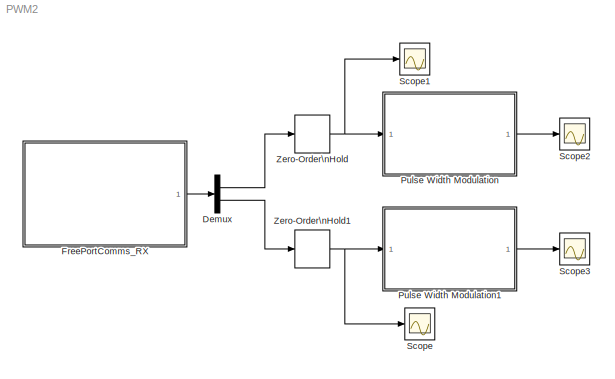
MODEL PWM2
KIND model
BLOCK [Demux] Demux
  Outputs = 2
  Ports = [1, 2]
  SID = 1
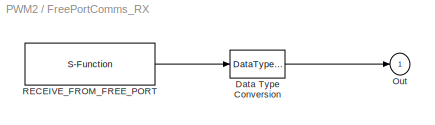
BLOCK [SubSystem] FreePortComms_RX
  Ports = [0, 1]
  RequestExecContextInheritance = off
  SID = 11
  ShowPortLabels = none
  Tag = mcTarget_freePortCommsRX
BLOCK [DataTypeConversion] FreePortComms_RX/Data Type Conversion
  OutDataTypeStr = double
  SID = 11:12
BLOCK [Outport] FreePortComms_RX/Out
  IconDisplay = Port number
  SID = 11:14
BLOCK [S-Function] FreePortComms_RX/RECEIVE_FROM_FREE_PORT
  EnableBusSupport = off
  FunctionName = freePortComms_rxd
  Parameters = sampletime, channel, buf_size, data_type, port, baudrate, format
  Ports = [0, 1]
  SFcnIsStateOwnerBlock = off
  SFunctionDeploymentMode = off
  SID = 11:13
  Tag = mcTarget_freePortCommsRX
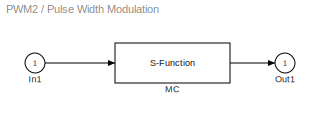
BLOCK [SubSystem] Pulse Width Modulation
  Ports = [1, 1]
  RequestExecContextInheritance = off
  SID = 15
  Tag = mcTarget_pwm
BLOCK [Inport] Pulse Width Modulation/In1
  IconDisplay = Port number
  SID = 15:16
BLOCK [S-Function] Pulse Width Modulation/MC
  EnableBusSupport = off
  FunctionName = pwm_sfcn_9S12
  Parameters = sampletime, PWMperiod, pulse_pin, sign_port, sign_pin, Vmax, sig_mon
  Ports = [1, 1]
  SFcnIsStateOwnerBlock = off
  SFunctionDeploymentMode = off
  SID = 15:17
  Tag = mcTarget_pwm
BLOCK [Outport] Pulse Width Modulation/Out1
  IconDisplay = Port number
  SID = 15:1
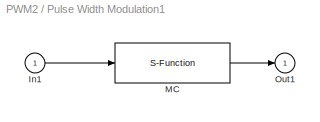
BLOCK [SubSystem] Pulse Width Modulation1
  Ports = [1, 1]
  RequestExecContextInheritance = off
  SID = 18
  Tag = mcTarget_pwm
BLOCK [Inport] Pulse Width Modulation1/In1
  IconDisplay = Port number
  SID = 18:16
BLOCK [S-Function] Pulse Width Modulation1/MC
  EnableBusSupport = off
  FunctionName = pwm_sfcn_9S12
  Parameters = sampletime, PWMperiod, pulse_pin, sign_port, sign_pin, Vmax, sig_mon
  Ports = [1, 1]
  SFcnIsStateOwnerBlock = off
  SFunctionDeploymentMode = off
  SID = 18:17
  Tag = mcTarget_pwm
BLOCK [Outport] Pulse Width Modulation1/Out1
  IconDisplay = Port number
  SID = 18:1
BLOCK [Scope] Scope
  Floating = off
  NumInputPorts = 1
  Ports = [1]
  SID = 5
  ScopeSpecificationString = C++SS(StrPVP('Location','[648, 430, 971, 685]'),StrPVP('Open','off'),MxPVP('AxesTitles',54,'struct(''axes1'',''%<SignalLabel>'')'),StrPVP('TimeRange','10'),StrPVP('YMin','-6'),StrPVP('YMax','6'),StrPVP('DataFormat','StructureWithTime'),StrPVP('LimitDataPoints','on'),StrPVP('Decimation','1'),StrPVP('BlockParamSampleInput','off'))
BLOCK [Scope] Scope1
  Floating = off
  NumInputPorts = 1
  Ports = [1]
  SID = 6
  ScopeSpecificationString = C++SS(StrPVP('Location','[648, 97, 972, 352]'),StrPVP('Open','off'),MxPVP('AxesTitles',54,'struct(''axes1'',''%<SignalLabel>'')'),StrPVP('TimeRange','10'),StrPVP('YMin','-6'),StrPVP('YMax','6'),StrPVP('SaveName','ScopeData1'),StrPVP('DataFormat','StructureWithTime'),StrPVP('LimitDataPoints','on'),StrPVP('Decimation','1'),StrPVP('BlockParamSampleInput','off'))
BLOCK [Scope] Scope2
  Floating = off
  NumInputPorts = 1
  Ports = [1]
  SID = 7
  ScopeSpecificationString = C++SS(StrPVP('Location','[317, 98, 639, 352]'),StrPVP('Open','off'),MxPVP('AxesTitles',54,'struct(''axes1'',''%<SignalLabel>'')'),StrPVP('TimeRange','0.5'),StrPVP('YMin','-6'),StrPVP('YMax','6'),StrPVP('SaveName','ScopeData2'),StrPVP('DataFormat','StructureWithTime'),StrPVP('LimitDataPoints','on'),StrPVP('Decimation','1'),StrPVP('BlockParamSampleInput','off'))
BLOCK [Scope] Scope3
  Floating = off
  NumInputPorts = 1
  Ports = [1]
  SID = 8
  ScopeSpecificationString = C++SS(StrPVP('Location','[314, 431, 639, 685]'),StrPVP('Open','off'),MxPVP('AxesTitles',54,'struct(''axes1'',''%<SignalLabel>'')'),StrPVP('TimeRange','0.5'),StrPVP('YMin','-6'),StrPVP('YMax','6'),StrPVP('SaveName','ScopeData3'),StrPVP('DataFormat','StructureWithTime'),StrPVP('LimitDataPoints','on'),StrPVP('Decimation','1'),StrPVP('BlockParamSampleInput','off'))
BLOCK [ZeroOrderHold] Zero-Order\nHold
  SID = 9
  SampleTime = 0.01
BLOCK [ZeroOrderHold] Zero-Order\nHold1
  SID = 10
  SampleTime = 0.01
LINE Demux:1 -> Zero-Order\nHold:1
LINE Demux:2 -> Zero-Order\nHold1:1
LINE FreePortComms_RX/Data Type Conversion:1 -> FreePortComms_RX/Out:1
LINE FreePortComms_RX/RECEIVE_FROM_FREE_PORT:1 -> FreePortComms_RX/Data Type Conversion:1
LINE FreePortComms_RX:1 -> Demux:1
LINE Pulse Width Modulation/In1:1 -> Pulse Width Modulation/MC:1
LINE Pulse Width Modulation/MC:1 -> Pulse Width Modulation/Out1:1
LINE Pulse Width Modulation1/In1:1 -> Pulse Width Modulation1/MC:1
LINE Pulse Width Modulation1/MC:1 -> Pulse Width Modulation1/Out1:1
LINE Pulse Width Modulation1:1 -> Scope3:1
LINE Pulse Width Modulation:1 -> Scope2:1
NET Zero-Order\nHold1:1 -> Pulse Width Modulation1:1, Scope:1
NET Zero-Order\nHold:1 -> Pulse Width Modulation:1, Scope1:1
note: NET lines group one-source signal fan-out (src -> all destinations, sorted); 1:1 wires keep LINE
